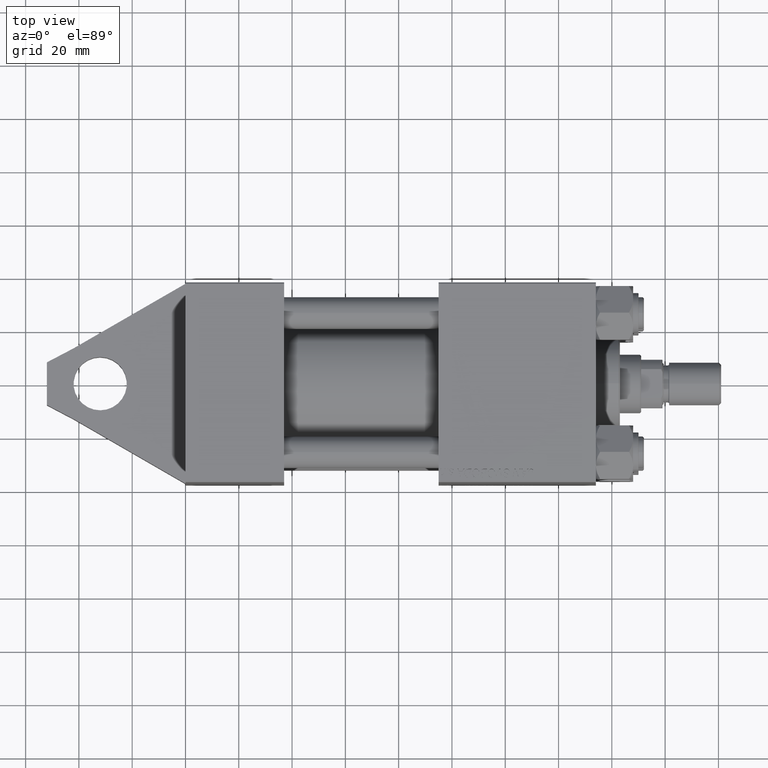
[diagram: clean part render]
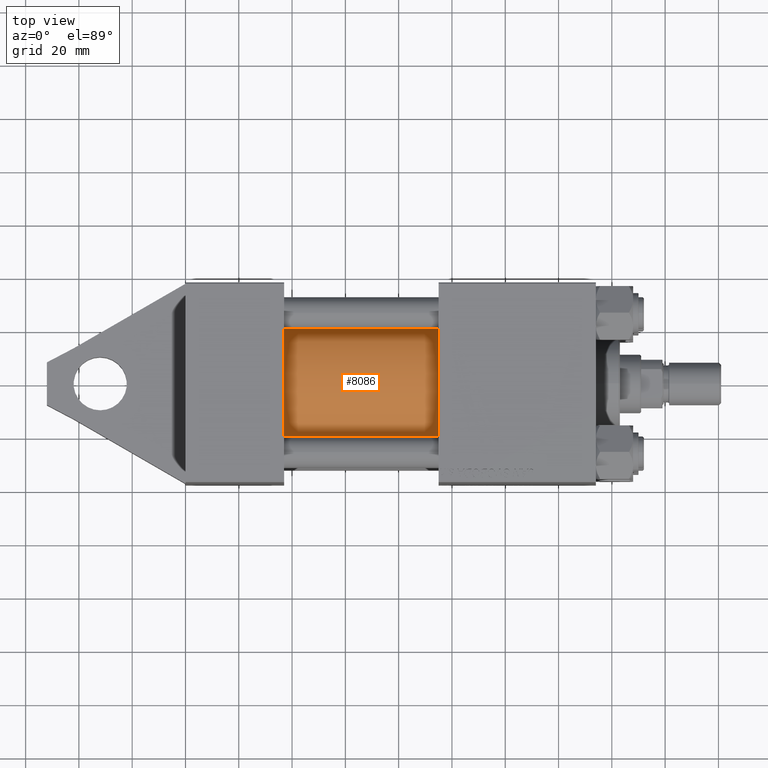
[diagram: same view with one face highlighted and labeled with its STEP entity id]
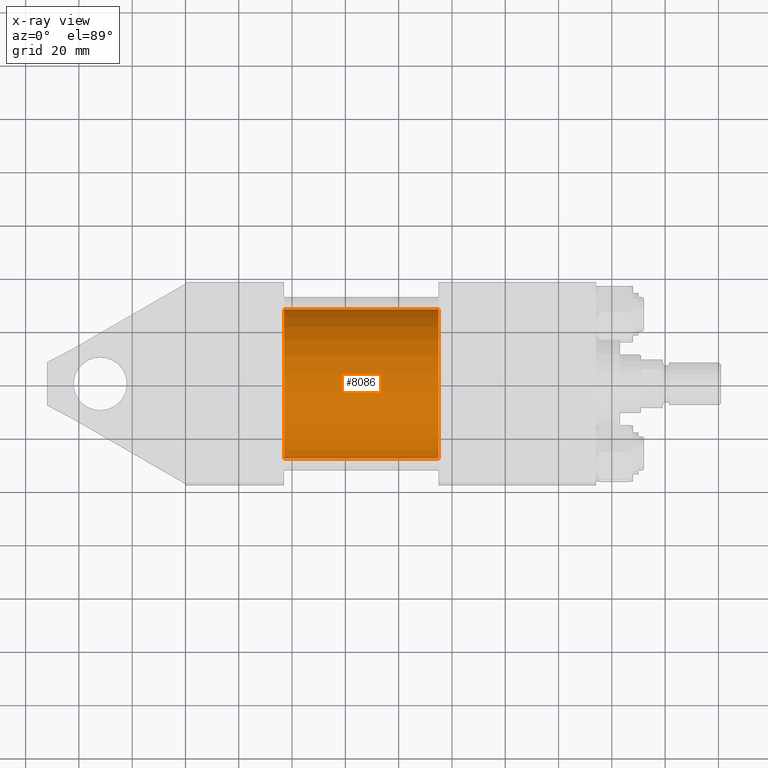
[diagram: x-ray of the same camera — body ghosted, the highlighted face saturated]
A machine part, top view. The second image highlights one B-rep face of the part: STEP entity #8086.
The next image is the same camera in x-ray: the body ghosted, the highlighted face saturated — about 1% of this face is hidden behind the body in this view.
In plain terms, the highlighted cylindrical surface (partial cylindrical patch) has radius 28 mm, axis along (-1, -0, 0).
Its self-contained STEP definition (entity closure, byte-faithful):
#50 = ORIENTED_EDGE ( 'NONE', *, *, #17325, .F. ) ;
#812 = DIRECTION ( 'NONE',  ( 1.000000000000000000, -0.000000000000000000, 0.000000000000000000 ) ) ;
#1219 = AXIS2_PLACEMENT_3D ( 'NONE', #32304, #18186, #18416 ) ;
#5489 = AXIS2_PLACEMENT_3D ( 'NONE', #26210, #812, #11395 ) ;
#6540 = ORIENTED_EDGE ( 'NONE', *, *, #44055, .T. ) ;
#7819 = VERTEX_POINT ( 'NONE', #37016 ) ;
#8062 = EDGE_CURVE ( 'NONE', #20267, #9317, #28769, .T. ) ;
#8086 = ADVANCED_FACE ( 'NONE', ( #36506 ), #36740, .T. ) ;
#9317 = VERTEX_POINT ( 'NONE', #31807 ) ;
#10848 = DIRECTION ( 'NONE',  ( 0.000000000000000000, 0.000000000000000000, -1.000000000000000000 ) ) ;
#11069 = CIRCLE ( 'NONE', #44816, 28.00000000000000000 ) ;
#11395 = DIRECTION ( 'NONE',  ( 0.000000000000000000, 0.000000000000000000, 1.000000000000000000 ) ) ;
#12998 = CIRCLE ( 'NONE', #5489, 28.00000000000000000 ) ;
#13853 = ORIENTED_EDGE ( 'NONE', *, *, #8062, .T. ) ;
#14030 = EDGE_CURVE ( 'NONE', #24506, #7819, #38298, .T. ) ;
#15916 = CARTESIAN_POINT ( 'NONE',  ( 95.00000000000000000, -2.602085213965210642E-15, 0.000000000000000000 ) ) ;
#16905 = CARTESIAN_POINT ( 'NONE',  ( 95.00000000000000000, -2.602085213965210642E-15, 28.00000000000000000 ) ) ;
#17325 = EDGE_CURVE ( 'NONE', #20267, #24506, #11069, .T. ) ;
#17913 = ORIENTED_EDGE ( 'NONE', *, *, #14030, .F. ) ;
#18186 = DIRECTION ( 'NONE',  ( -1.000000000000000000, -0.000000000000000000, -0.000000000000000000 ) ) ;
#18416 = DIRECTION ( 'NONE',  ( 0.000000000000000000, 0.000000000000000000, 1.000000000000000000 ) ) ;
#19958 = VECTOR ( 'NONE', #43577, 1000.000000000000000 ) ;
#20267 = VERTEX_POINT ( 'NONE', #39141 ) ;
#24192 = DIRECTION ( 'NONE',  ( -1.000000000000000000, -0.000000000000000000, -0.000000000000000000 ) ) ;
#24506 = VERTEX_POINT ( 'NONE', #31073 ) ;
#26210 = CARTESIAN_POINT ( 'NONE',  ( 37.00000000000000000, -2.602085213965210642E-15, 0.000000000000000000 ) ) ;
#28769 = LINE ( 'NONE', #28999, #19958 ) ;
#28999 = CARTESIAN_POINT ( 'NONE',  ( 95.00000000000000000, 8.269258236473776482E-16, -28.00000000000000000 ) ) ;
#31073 = CARTESIAN_POINT ( 'NONE',  ( 95.00000000000000000, -2.602085213965210642E-15, 28.00000000000000000 ) ) ;
#31807 = CARTESIAN_POINT ( 'NONE',  ( 37.00000000000000000, 8.269258236473776482E-16, -28.00000000000000000 ) ) ;
#32304 = CARTESIAN_POINT ( 'NONE',  ( 95.00000000000000000, -2.602085213965210642E-15, 0.000000000000000000 ) ) ;
#36506 = FACE_OUTER_BOUND ( 'NONE', #42775, .T. ) ;
#36740 = CYLINDRICAL_SURFACE ( 'NONE', #1219, 28.00000000000000000 ) ;
#37016 = CARTESIAN_POINT ( 'NONE',  ( 37.00000000000000000, -2.602085213965210642E-15, 28.00000000000000000 ) ) ;
#38298 = LINE ( 'NONE', #16905, #45693 ) ;
#39141 = CARTESIAN_POINT ( 'NONE',  ( 95.00000000000000000, 8.269258236473776482E-16, -28.00000000000000000 ) ) ;
#42775 = EDGE_LOOP ( 'NONE', ( #50, #13853, #6540, #17913 ) ) ;
#43049 = DIRECTION ( 'NONE',  ( 1.000000000000000000, 0.000000000000000000, 0.000000000000000000 ) ) ;
#43577 = DIRECTION ( 'NONE',  ( -1.000000000000000000, -0.000000000000000000, -0.000000000000000000 ) ) ;
#44055 = EDGE_CURVE ( 'NONE', #9317, #7819, #12998, .T. ) ;
#44816 = AXIS2_PLACEMENT_3D ( 'NONE', #15916, #43049, #10848 ) ;
#45693 = VECTOR ( 'NONE', #24192, 1000.000000000000000 ) ;